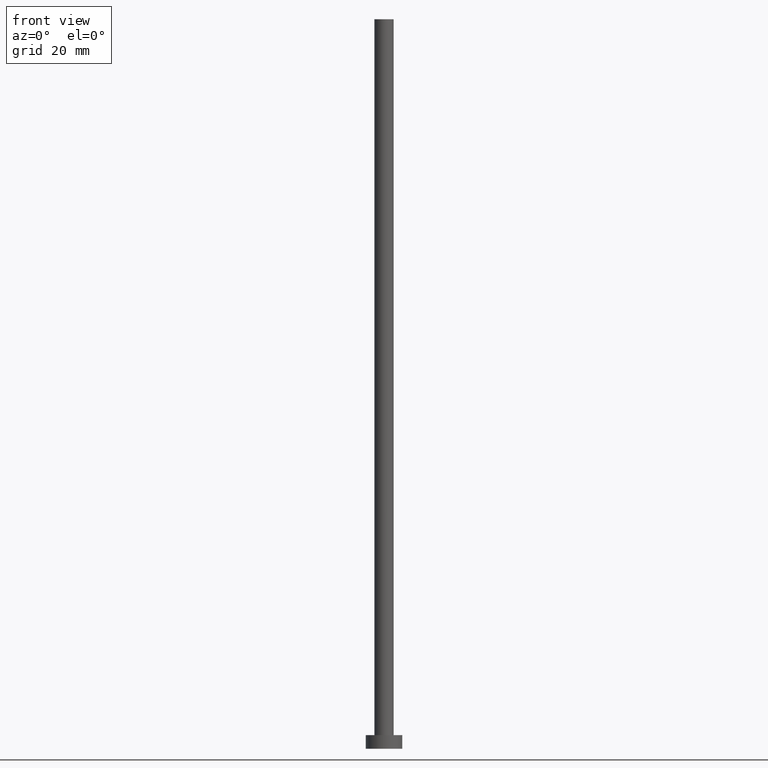
[diagram: clean part render]
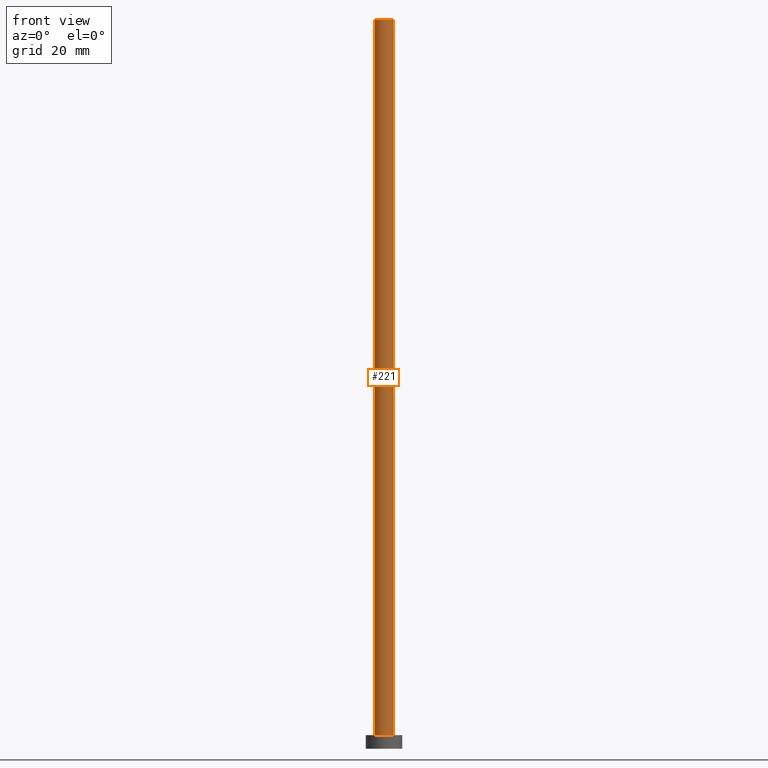
[diagram: same view with one face highlighted and labeled with its STEP entity id]
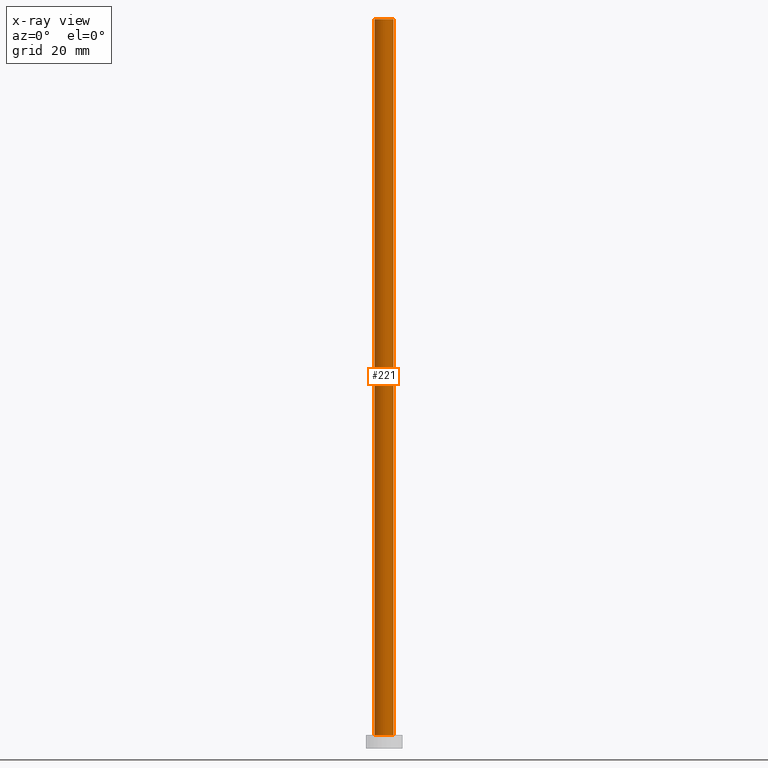
[diagram: x-ray of the same camera — body ghosted, the highlighted face saturated]
A machine part, front view. The second image highlights one B-rep face of the part: STEP entity #221.
The next image is the same camera in x-ray: the body ghosted, the highlighted face saturated — about 0% of this face is hidden behind the body in this view.
In plain terms, the highlighted cylindrical surface (edge-blend (fillet) strip) has radius 2.1 mm, axis along (-0, -0, -1).
Its self-contained STEP definition (entity closure, byte-faithful):
#2 = DIRECTION ( 'NONE',  ( -0.000000000000000000, -0.000000000000000000, -1.000000000000000000 ) ) ;
#6 = AXIS2_PLACEMENT_3D ( 'NONE', #179, #98, #196 ) ;
#16 = CARTESIAN_POINT ( 'NONE',  ( 2.100000000000000089, 2.571758278209441957E-16, 160.0000000000000000 ) ) ;
#31 = FACE_OUTER_BOUND ( 'NONE', #59, .T. ) ;
#40 = DIRECTION ( 'NONE',  ( 1.000000000000000000, 0.000000000000000000, 0.000000000000000000 ) ) ;
#51 = AXIS2_PLACEMENT_3D ( 'NONE', #204, #65, #110 ) ;
#57 = CARTESIAN_POINT ( 'NONE',  ( 2.100000000000000089, 2.571758278209441957E-16, 3.000000000000000000 ) ) ;
#59 = EDGE_LOOP ( 'NONE', ( #128, #133, #69, #114 ) ) ;
#60 = CARTESIAN_POINT ( 'NONE',  ( -2.100000000000000089, 0.000000000000000000, 160.0000000000000000 ) ) ;
#61 = CARTESIAN_POINT ( 'NONE',  ( -2.100000000000000089, 0.000000000000000000, 3.000000000000000000 ) ) ;
#65 = DIRECTION ( 'NONE',  ( 0.000000000000000000, 0.000000000000000000, 1.000000000000000000 ) ) ;
#69 = ORIENTED_EDGE ( 'NONE', *, *, #76, .T. ) ;
#75 = VECTOR ( 'NONE', #2, 1000.000000000000000 ) ;
#76 = EDGE_CURVE ( 'NONE', #146, #92, #86, .T. ) ;
#86 = LINE ( 'NONE', #163, #234 ) ;
#92 = VERTEX_POINT ( 'NONE', #61 ) ;
#94 = VERTEX_POINT ( 'NONE', #143 ) ;
#98 = DIRECTION ( 'NONE',  ( -0.000000000000000000, -0.000000000000000000, -1.000000000000000000 ) ) ;
#110 = DIRECTION ( 'NONE',  ( 1.000000000000000000, 0.000000000000000000, 0.000000000000000000 ) ) ;
#111 = EDGE_CURVE ( 'NONE', #146, #94, #166, .T. ) ;
#114 = ORIENTED_EDGE ( 'NONE', *, *, #131, .T. ) ;
#115 = CIRCLE ( 'NONE', #51, 2.100000000000000089 ) ;
#128 = ORIENTED_EDGE ( 'NONE', *, *, #228, .F. ) ;
#131 = EDGE_CURVE ( 'NONE', #92, #244, #115, .T. ) ;
#133 = ORIENTED_EDGE ( 'NONE', *, *, #111, .F. ) ;
#135 = AXIS2_PLACEMENT_3D ( 'NONE', #206, #182, #40 ) ;
#143 = CARTESIAN_POINT ( 'NONE',  ( 2.100000000000000089, 2.571758278209441957E-16, 160.0000000000000000 ) ) ;
#146 = VERTEX_POINT ( 'NONE', #60 ) ;
#154 = LINE ( 'NONE', #16, #75 ) ;
#163 = CARTESIAN_POINT ( 'NONE',  ( -2.100000000000000089, 0.000000000000000000, 160.0000000000000000 ) ) ;
#166 = CIRCLE ( 'NONE', #135, 2.100000000000000089 ) ;
#179 = CARTESIAN_POINT ( 'NONE',  ( 0.000000000000000000, 0.000000000000000000, 160.0000000000000000 ) ) ;
#182 = DIRECTION ( 'NONE',  ( 0.000000000000000000, 0.000000000000000000, 1.000000000000000000 ) ) ;
#196 = DIRECTION ( 'NONE',  ( -1.000000000000000000, 0.000000000000000000, 0.000000000000000000 ) ) ;
#204 = CARTESIAN_POINT ( 'NONE',  ( 0.000000000000000000, 0.000000000000000000, 3.000000000000000000 ) ) ;
#206 = CARTESIAN_POINT ( 'NONE',  ( 0.000000000000000000, 0.000000000000000000, 160.0000000000000000 ) ) ;
#219 = DIRECTION ( 'NONE',  ( -0.000000000000000000, -0.000000000000000000, -1.000000000000000000 ) ) ;
#221 = ADVANCED_FACE ( 'NONE', ( #31 ), #255, .T. ) ;
#228 = EDGE_CURVE ( 'NONE', #94, #244, #154, .T. ) ;
#234 = VECTOR ( 'NONE', #219, 1000.000000000000000 ) ;
#244 = VERTEX_POINT ( 'NONE', #57 ) ;
#255 = CYLINDRICAL_SURFACE ( 'NONE', #6, 2.100000000000000089 ) ;